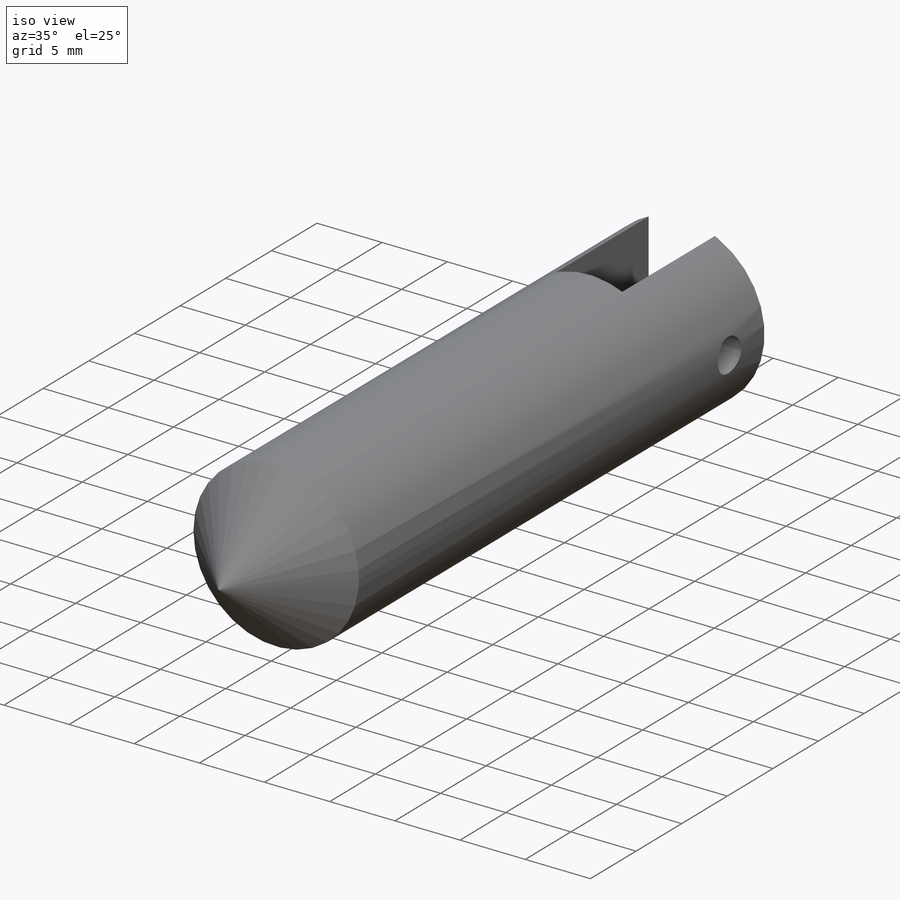
[diagram: iso view]
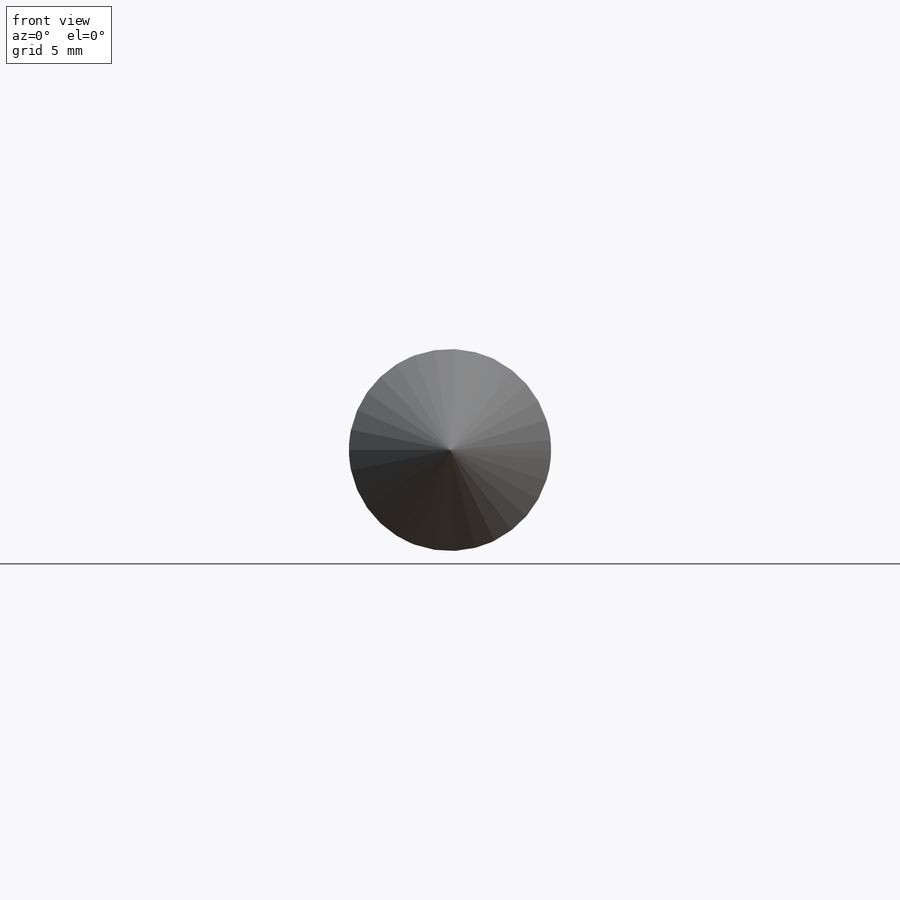
[diagram: front view]
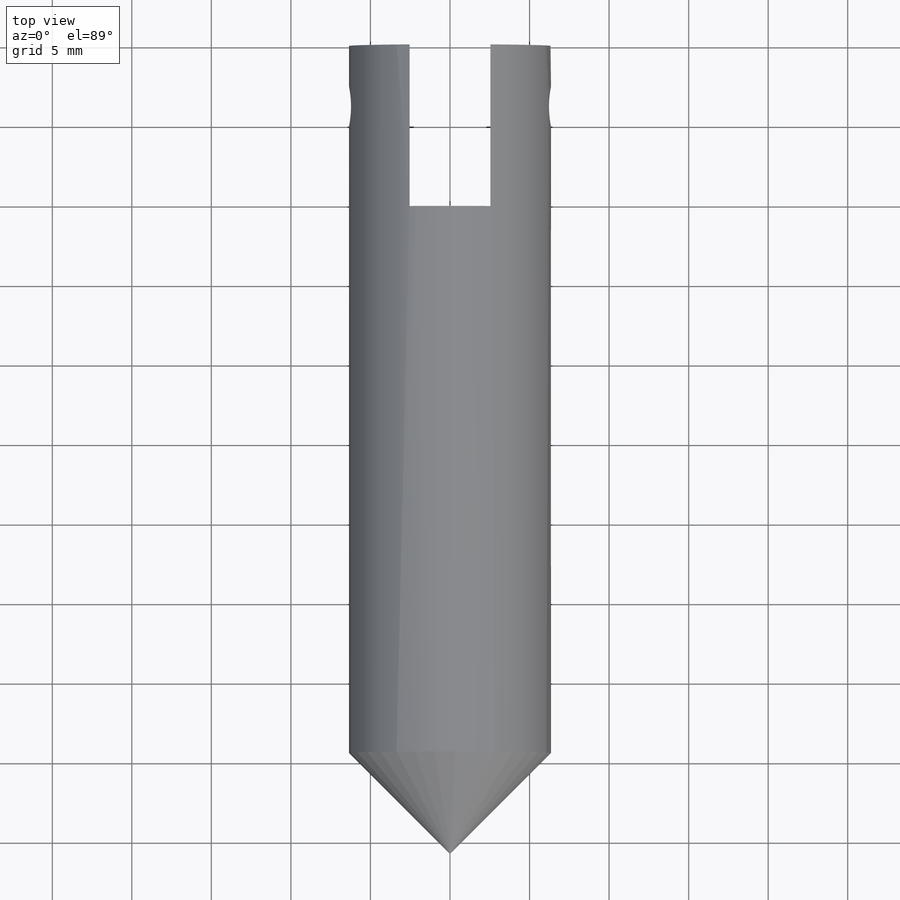
[diagram: top view]
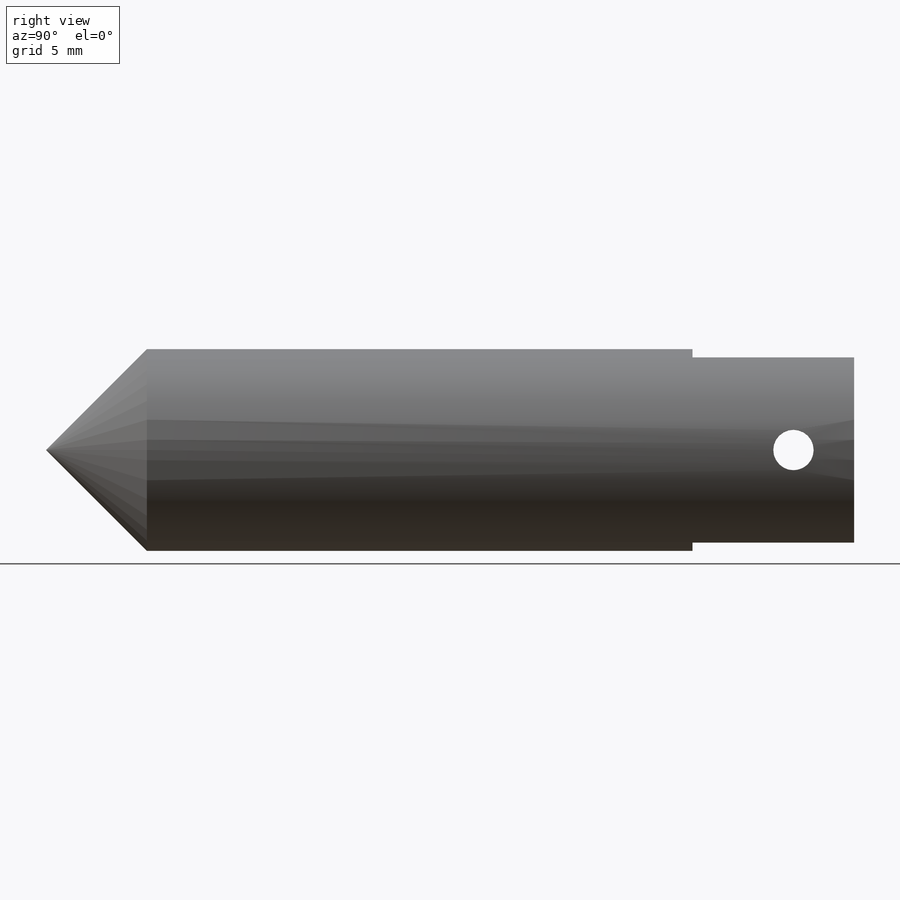
[diagram: right view]
SOLIDWORKS PART (.sldprt)
format: sldprt  version: not decoded by parser v0  size: 197,120 bytes
history: native  units: mm
features: sketch x4, cut_extrude x2, material x1, extrude x1, revolve x1 (+11 scaffold rows collapsed)
feature tree (20):
  scaffold x11  (default folders/planes/origin — collapsed)
  material  "Material <not specified>"
  sketch  "Sketch2"  dims[D1=12.7mm]
  extrude  "Boss-Extrude1"  Depth=44.45mm
  sketch  "Sketch3"  dims[D1=6.35mm]
  revolve  "Revolve1"  Angle=360deg
  sketch  "Sketch4"  dims[D1=12.7mm D2=5.08mm]
  cut_extrude  "Cut-Extrude1"  Depth=10.16mm
  sketch  "Sketch5"  dims[D1=2.54mm D2=3.81mm]
  cut_extrude  "Cut-Extrude2"  [1 undecoded]
decode coverage: 7 of 8 modeling features carry decoded parameters
note: 1 parameter value undecoded
note: suppression state not decoded; provenance and decode notes live in map.json
